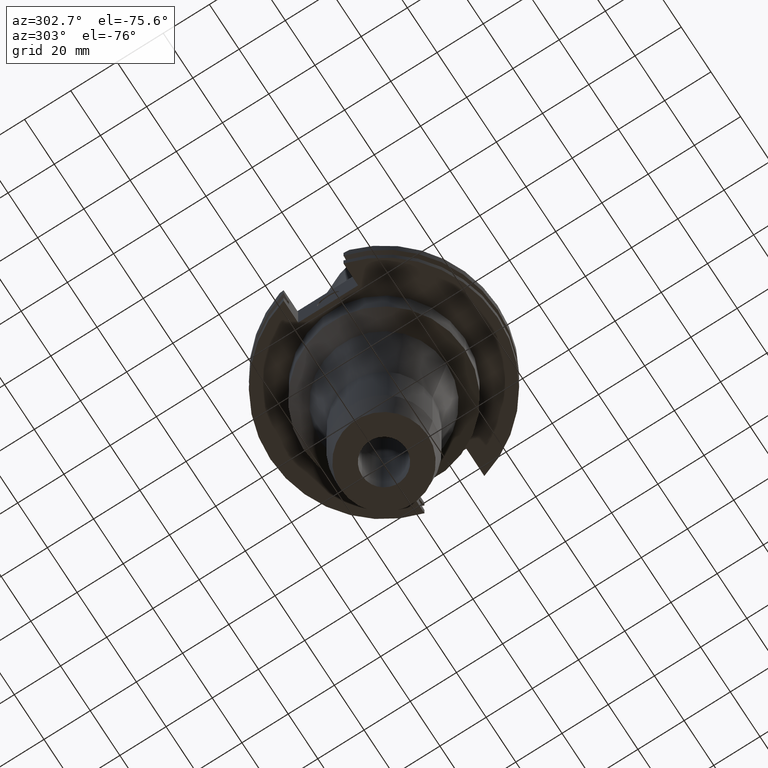
[diagram: clean part render]
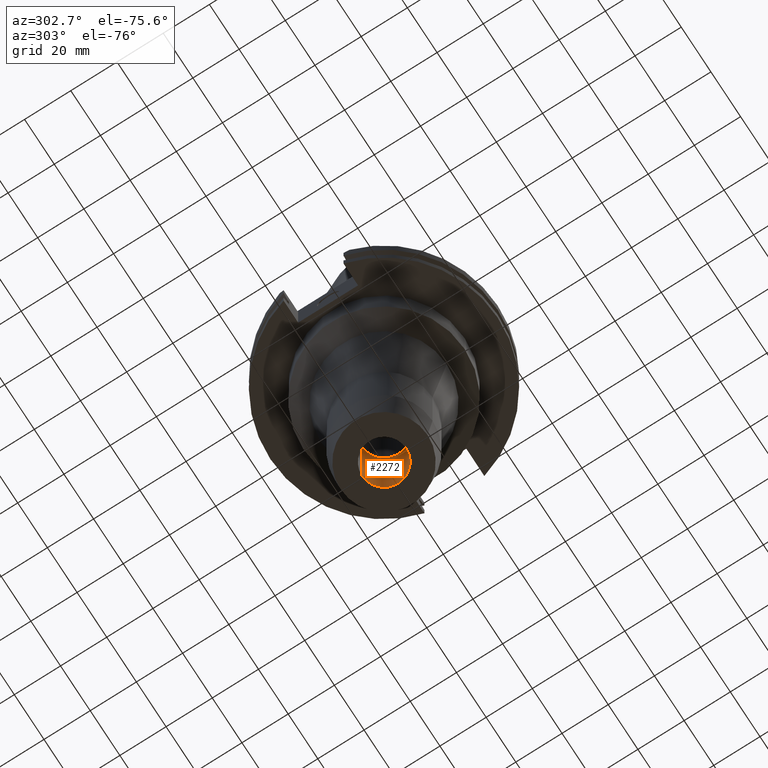
[diagram: same view with one face highlighted and labeled with its STEP entity id]
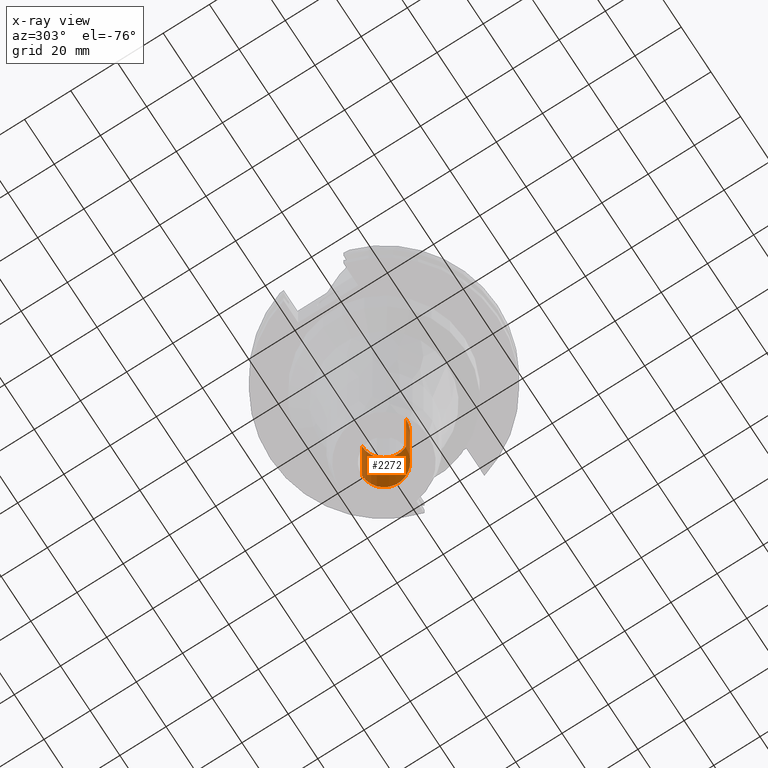
[diagram: x-ray of the same camera — body ghosted, the highlighted face saturated]
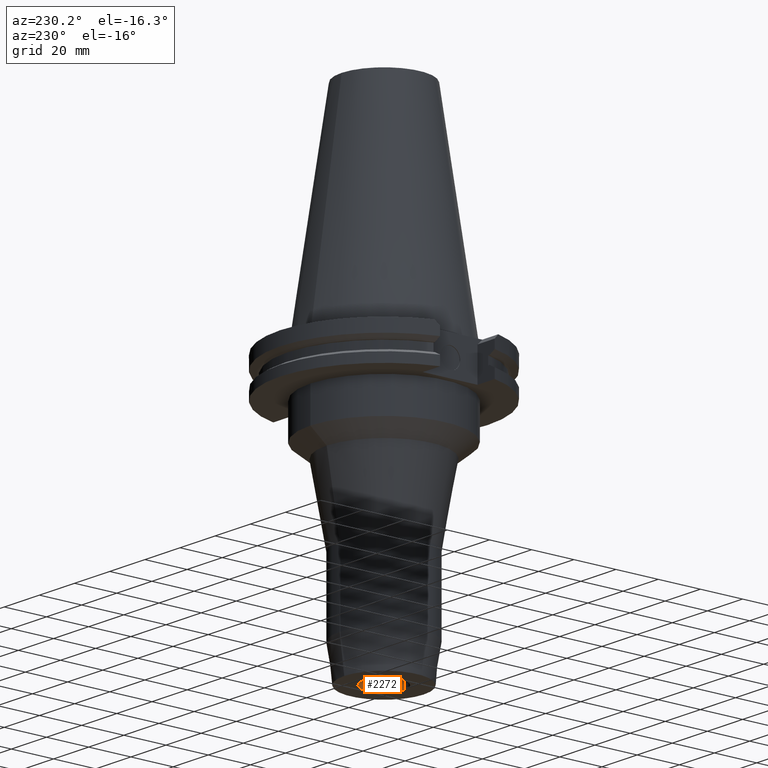
[diagram: same view with one face highlighted and labeled with its STEP entity id]
A machine part, auxiliary view. The second image highlights one B-rep face of the part: STEP entity #2272.
The next image is the same camera in x-ray: the body ghosted, the highlighted face saturated — about 2% of this face is hidden behind the body in this view.
A second angle (auxiliary view) of the same face is appended — the face is thin or edge-on in the first view.
In plain terms, the highlighted cylindrical surface (edge-blend (fillet) strip) has radius 9.525 mm, axis along (0, 0, 1).
Its self-contained STEP definition (entity closure, byte-faithful):
#974=CARTESIAN_POINT('',(0.E0,0.E0,-1.27E2));
#975=DIRECTION('',(0.E0,0.E0,-1.E0));
#976=DIRECTION('',(0.E0,1.E0,0.E0));
#977=AXIS2_PLACEMENT_3D('',#974,#975,#976);
#982=DIRECTION('',(0.E0,0.E0,1.E0));
#983=VECTOR('',#982,4.3E1);
#984=CARTESIAN_POINT('',(0.E0,-9.525E0,-1.27E2));
#985=LINE('',#984,#983);
#989=DIRECTION('',(0.E0,0.E0,1.E0));
#990=VECTOR('',#989,4.3E1);
#991=CARTESIAN_POINT('',(0.E0,9.525E0,-1.27E2));
#992=LINE('',#991,#990);
#1012=CARTESIAN_POINT('',(0.E0,0.E0,-8.4E1));
#1013=DIRECTION('',(0.E0,0.E0,1.E0));
#1014=DIRECTION('',(0.E0,-1.E0,0.E0));
#1015=AXIS2_PLACEMENT_3D('',#1012,#1013,#1014);
#1368=CARTESIAN_POINT('',(0.E0,-9.525E0,-1.27E2));
#1369=CARTESIAN_POINT('',(0.E0,9.525E0,-1.27E2));
#1370=VERTEX_POINT('',#1368);
#1371=VERTEX_POINT('',#1369);
#1372=CARTESIAN_POINT('',(0.E0,9.525E0,-8.4E1));
#1373=VERTEX_POINT('',#1372);
#1374=CARTESIAN_POINT('',(0.E0,-9.525E0,-8.4E1));
#1375=VERTEX_POINT('',#1374);
#2260=CARTESIAN_POINT('',(0.E0,0.E0,-1.3843E2));
#2261=DIRECTION('',(0.E0,0.E0,1.E0));
#2262=DIRECTION('',(0.E0,1.E0,0.E0));
#2263=AXIS2_PLACEMENT_3D('',#2260,#2261,#2262);
#2264=CYLINDRICAL_SURFACE('',#2263,9.525E0);
#2265=ORIENTED_EDGE('',*,*,#2250,.T.);
#2267=ORIENTED_EDGE('',*,*,#2266,.F.);
#2268=ORIENTED_EDGE('',*,*,#2253,.F.);
#2269=ORIENTED_EDGE('',*,*,#2240,.F.);
#2270=EDGE_LOOP('',(#2265,#2267,#2268,#2269));
#2271=FACE_OUTER_BOUND('',#2270,.F.);
#978=CIRCLE('',#977,9.525E0);
#1016=CIRCLE('',#1015,9.525E0);
#2240=EDGE_CURVE('',#1371,#1370,#978,.T.);
#2250=EDGE_CURVE('',#1371,#1373,#992,.T.);
#2253=EDGE_CURVE('',#1370,#1375,#985,.T.);
#2266=EDGE_CURVE('',#1375,#1373,#1016,.T.);
#2272=ADVANCED_FACE('',(#2271),#2264,.F.);